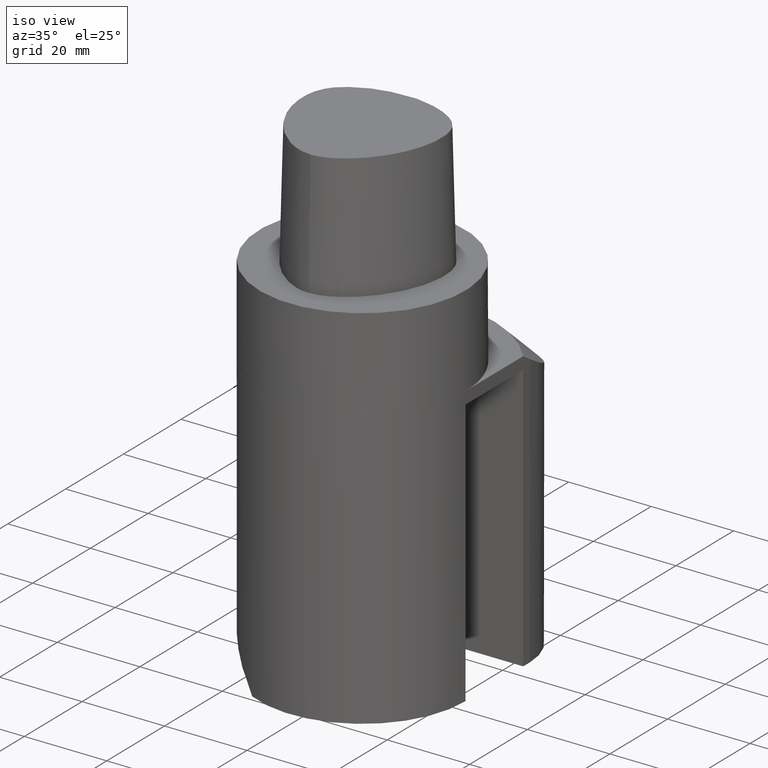
[diagram: clean part render]
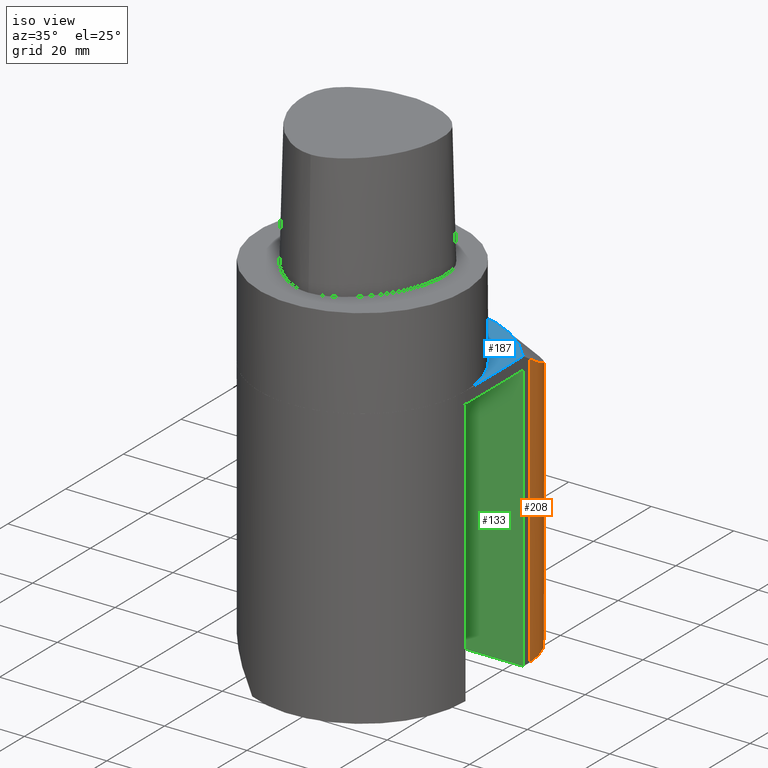
[diagram: same view with three faces highlighted in distinct colors, each labeled with its STEP entity id]
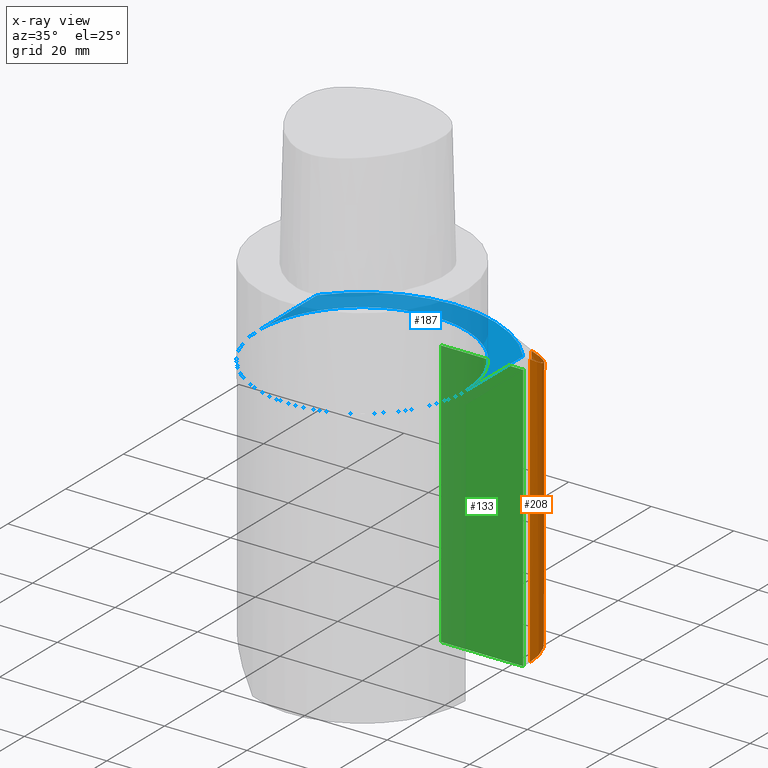
[diagram: x-ray of the same camera — body ghosted, the three highlighted faces saturated]
A machine part, iso view with three faces highlighted in distinct colors.
The next image is the same camera in x-ray (body ghosted, the three faces saturated) — at least one of them is partly hidden behind the body in this view.
Their STEP definitions:

[orange] entity #208 — the highlighted cylindrical surface (partial cylindrical patch) has radius 16 mm, axis along (-0, 0, 1).
#135=EDGE_CURVE('240[2]',#325,#286,#326,.T.);
#158=EDGE_CURVE('240[2]',#340,#286,#359,.T.);
#166=EDGE_CURVE('240[2]',#346,#340,#369,.T.);
#208=ADVANCED_FACE('240[2]',(#419),#420,.T.);
#234=EDGE_CURVE('240[2]',#325,#346,#452,.T.);
#286=VERTEX_POINT('',#510);
#325=VERTEX_POINT('',#563);
#326=LINE('',#564,#565);
#340=VERTEX_POINT('',#587);
#346=VERTEX_POINT('',#596);
#359=B_SPLINE_CURVE_WITH_KNOTS('',3,(#1092,#1093,#1094,#1095,#1096,#1097,#1098,#1099,#1100,#1101,#1102,#1103,#1104,#1105,#1106,#1107),.UNSPECIFIED.,.F.,.F.,(4,2,2,2,2,2,2,4),(23.5284476815155,26.1635051094531,28.7985625373922,31.4336199653313,34.0686773932704,37.3157318857098,40.5627863781492,42.9744815832491),.UNSPECIFIED.);
#369=LINE('',#1123,#1124);
#419=FACE_OUTER_BOUND('',#1218,.T.);
#420=CYLINDRICAL_SURFACE('',#1219,16.0);
#452=CIRCLE('',#1312,16.0);
#510=CARTESIAN_POINT('',(25.0,22.2485954612832,-23.466401061364));
#563=CARTESIAN_POINT('',(25.0,22.2485954612832,-90.0000000000002));
#564=CARTESIAN_POINT('',(25.0,22.2485954612832,-89.0000000000009));
#565=VECTOR('',#1402,65.5335989386369);
#587=CARTESIAN_POINT('',(14.9999999999999,37.0809924354746,-30.0000000000007));
#596=CARTESIAN_POINT('',(14.9999999999999,37.0809924354746,-90.0000000000008));
#1092=CARTESIAN_POINT('',(15.0000000000006,37.0809924354743,-30.0000000000007));
#1093=CARTESIAN_POINT('',(15.8142545379377,36.7516102569818,-30.0000000000007));
#1094=CARTESIAN_POINT('',(16.6279567442258,36.3430416121195,-29.9559141211588));
#1095=CARTESIAN_POINT('',(18.1867316651038,35.3803545858274,-29.7705437909274));
#1096=CARTESIAN_POINT('',(18.9318393418272,34.8262885874262,-29.6292812996166));
#1097=CARTESIAN_POINT('',(20.3029619384396,33.6100588488435,-29.2560993606877));
#1098=CARTESIAN_POINT('',(20.9301471830432,32.9469518283865,-29.0238542363534));
#1099=CARTESIAN_POINT('',(22.0372760891465,31.5659273198522,-28.4881515346753));
#1100=CARTESIAN_POINT('',(22.5172772851337,30.8480739294063,-28.1846476258228));
#1101=CARTESIAN_POINT('',(23.4166631892578,29.2610032388611,-27.4658488429808));
#1102=CARTESIAN_POINT('',(23.8359856580691,28.325385223544,-27.0095256242477));
#1103=CARTESIAN_POINT('',(24.4858780145183,26.3984661226904,-25.9952852785824));
#1104=CARTESIAN_POINT('',(24.7166021467317,25.4072474769729,-25.4373103704645));
#1105=CARTESIAN_POINT('',(24.9520041598144,23.6904653487833,-24.4018891330599));
#1106=CARTESIAN_POINT('',(24.9997182469205,22.9615605249888,-23.9402235092718));
#1107=CARTESIAN_POINT('',(24.9998756102743,22.2486281925418,-23.4663517764093));
#1123=CARTESIAN_POINT('',(15.0000000000003,37.0809924354793,-90.0000000000008));
#1124=VECTOR('',#1427,60.0000000000001);
#1218=EDGE_LOOP('',(#1489,#1490,#1491,#1492));
#1219=AXIS2_PLACEMENT_3D('',#1493,#1494,#1495);
#1312=AXIS2_PLACEMENT_3D('',#1543,#1544,#1545);
#1402=DIRECTION('',(0.0,0.0,1.0));
#1427=DIRECTION('',(0.0,0.0,1.0));
#1489=ORIENTED_EDGE('',*,*,#166,.T.);
#1490=ORIENTED_EDGE('',*,*,#158,.T.);
#1491=ORIENTED_EDGE('',*,*,#135,.F.);
#1492=ORIENTED_EDGE('',*,*,#234,.T.);
#1493=CARTESIAN_POINT('',(8.99999999999993,22.2485954612832,-263.139999954391));
#1494=DIRECTION('',(-0.0,0.0,1.0));
#1495=DIRECTION('',(1.0,0.0,0.0));
#1543=CARTESIAN_POINT('',(8.99999999999994,22.2485954612832,-90.0000000000002));
#1544=DIRECTION('',(0.0,0.0,1.0));
#1545=DIRECTION('',(1.0,0.0,0.0));

[blue] entity #187 — the highlighted planar face has unit normal (-0, -0, -1).
#103=EDGE_CURVE('240[2]',#276,#277,#278,.T.);
#143=EDGE_CURVE('240[2]',#287,#337,#338,.T.);
#153=EDGE_CURVE('240[2]',#287,#352,#353,.T.);
#171=EDGE_CURVE('240[2]',#301,#337,#375,.T.);
#175=EDGE_CURVE('240[2]',#277,#301,#379,.T.);
#187=ADVANCED_FACE('240[2]',(#392,#393),#394,.F.);
#189=EDGE_CURVE('240[2]',#352,#276,#396,.T.);
#215=EDGE_CURVE('240[2]',#428,#428,#429,.T.);
#276=VERTEX_POINT('',#492);
#277=VERTEX_POINT('',#493);
#278=CIRCLE('',#494,25.0000000000001);
#287=VERTEX_POINT('',#511);
#301=VERTEX_POINT('',#529);
#337=VERTEX_POINT('',#583);
#338=CIRCLE('',#584,31.9999999999976);
#352=VERTEX_POINT('',#699);
#353=LINE('',#700,#701);
#375=CIRCLE('',#1132,738.70740952226);
#379=LINE('',#1139,#1140);
#392=FACE_OUTER_BOUND('',#1174,.T.);
#393=FACE_BOUND('',#1175,.T.);
#394=PLANE('',#1176);
#396=CIRCLE('',#1179,25.0);
#428=VERTEX_POINT('',#1231);
#429=CIRCLE('',#1232,24.9899999999999);
#492=CARTESIAN_POINT('',(-18.5687480408742,-16.7392232852859,-22.000000000001));
#493=CARTESIAN_POINT('',(-25.0,-3.86535248253495E-012,-21.9999999999998));
#494=AXIS2_PLACEMENT_3D('',#1360,#1361,#1362);
#511=CARTESIAN_POINT('',(25.0,19.9749843554335,-22.0000000000005));
#529=CARTESIAN_POINT('',(-25.0000000138871,19.9294348912551,-21.9999999999998));
#583=CARTESIAN_POINT('',(-24.9974794614974,19.9781385662387,-21.9999999999997));
#584=AXIS2_PLACEMENT_3D('',#1406,#1407,#1408);
#699=CARTESIAN_POINT('',(25.0,-3.75166564481333E-012,-21.9999999999998));
#700=CARTESIAN_POINT('',(25.0,19.9749843554335,-21.9999999999998));
#701=VECTOR('',#1416,19.9749843554373);
#1132=AXIS2_PLACEMENT_3D('',#1436,#1437,#1438);
#1139=CARTESIAN_POINT('',(-25.0000000138871,-3.86535248253495E-012,-21.9999999999998));
#1140=VECTOR('',#1440,17.3309971985202);
#1174=EDGE_LOOP('',(#1455,#1456,#1457,#1458,#1459,#1460));
#1175=EDGE_LOOP('',(#1461));
#1176=AXIS2_PLACEMENT_3D('',#1462,#1463,#1464);
#1179=AXIS2_PLACEMENT_3D('',#1465,#1466,#1467);
#1231=CARTESIAN_POINT('',(-1.34711147906215E-015,24.9899999999992,-22.000000000001));
#1232=AXIS2_PLACEMENT_3D('',#1505,#1506,#1507);
#1360=CARTESIAN_POINT('',(1.12339726242554E-013,-3.86535248253495E-012,-22.000000000001));
#1361=DIRECTION('',(0.0,0.0,-1.0));
#1362=DIRECTION('',(1.0,0.0,0.0));
#1406=CARTESIAN_POINT('',(-1.34711147906208E-015,-7.38964445190504E-013,-21.9999999999998));
#1407=DIRECTION('',(0.0,-0.0,1.0));
#1408=DIRECTION('',(0.0,1.0,0.0));
#1416=DIRECTION('',(0.0,-1.0,0.0));
#1436=CARTESIAN_POINT('',(712.721392143028,-18.2253084200521,-22.0000000000008));
#1437=DIRECTION('',(0.0,0.0,-1.0));
#1438=DIRECTION('',(0.0566399755711694,0.998394668038295,0.0));
#1440=DIRECTION('',(0.0,1.0,0.0));
#1455=ORIENTED_EDGE('',*,*,#175,.F.);
#1456=ORIENTED_EDGE('',*,*,#103,.F.);
#1457=ORIENTED_EDGE('',*,*,#189,.F.);
#1458=ORIENTED_EDGE('',*,*,#153,.F.);
#1459=ORIENTED_EDGE('',*,*,#143,.T.);
#1460=ORIENTED_EDGE('',*,*,#171,.F.);
#1461=ORIENTED_EDGE('',*,*,#215,.F.);
#1462=CARTESIAN_POINT('',(-1.34711147906215E-015,28.494999999998,-22.000000000001));
#1463=DIRECTION('',(-0.0,-0.0,-1.0));
#1464=DIRECTION('',(0.0,-1.0,0.0));
#1465=CARTESIAN_POINT('',(-1.34711147906215E-015,-3.75166564481333E-012,-22.000000000001));
#1466=DIRECTION('',(0.0,0.0,-1.0));
#1467=DIRECTION('',(1.0,0.0,0.0));
#1505=CARTESIAN_POINT('',(-1.34711147906209E-015,-7.38964445190504E-013,-22.0000000000001));
#1506=DIRECTION('',(0.0,-0.0,1.0));
#1507=DIRECTION('',(0.0,1.0,0.0));

[green] entity #133 — the highlighted planar face has unit normal (0, -1, 0).
#128=EDGE_CURVE('240[2]',#315,#316,#317,.T.);
#133=ADVANCED_FACE('240[2]',(#322),#323,.T.);
#141=EDGE_CURVE('240[2]',#316,#334,#335,.T.);
#147=EDGE_CURVE('240[2]',#343,#334,#344,.T.);
#162=EDGE_CURVE('240[2]',#343,#315,#364,.T.);
#315=VERTEX_POINT('',#548);
#316=VERTEX_POINT('',#549);
#317=LINE('',#550,#551);
#322=FACE_OUTER_BOUND('',#559,.T.);
#323=PLANE('',#560);
#334=VERTEX_POINT('',#578);
#335=LINE('',#579,#580);
#343=VERTEX_POINT('',#591);
#344=LINE('',#592,#593);
#364=LINE('',#1114,#1115);
#548=CARTESIAN_POINT('',(25.0,19.9999999999962,-90.0000000000002));
#549=CARTESIAN_POINT('',(25.0,19.9999999999962,-25.0000000000009));
#550=CARTESIAN_POINT('',(25.0,19.9999999999962,-89.0000000000009));
#551=VECTOR('',#1392,64.0);
#559=EDGE_LOOP('',(#1395,#1396,#1397,#1398));
#560=AXIS2_PLACEMENT_3D('',#1399,#1400,#1401);
#578=CARTESIAN_POINT('',(5.0,19.9999999999962,-25.0000000000009));
#579=CARTESIAN_POINT('',(25.0,19.9999999999962,-25.0000000000009));
#580=VECTOR('',#1405,20.0);
#591=CARTESIAN_POINT('',(4.99999999999999,19.9999999999962,-90.0000000000002));
#592=CARTESIAN_POINT('',(4.99999999999998,19.9999999999962,-90.0000000000002));
#593=VECTOR('',#1412,64.9999999999993);
#1114=CARTESIAN_POINT('',(4.99999999999999,19.9999999999962,-90.0000000000002));
#1115=VECTOR('',#1425,19.0000000000001);
#1392=DIRECTION('',(0.0,0.0,1.0));
#1395=ORIENTED_EDGE('',*,*,#141,.T.);
#1396=ORIENTED_EDGE('',*,*,#147,.F.);
#1397=ORIENTED_EDGE('',*,*,#162,.T.);
#1398=ORIENTED_EDGE('',*,*,#128,.T.);
#1399=CARTESIAN_POINT('',(15.0,19.9999999999962,-263.139999954391));
#1400=DIRECTION('',(0.0,-1.0,0.0));
#1401=DIRECTION('',(0.0,0.0,-1.0));
#1405=DIRECTION('',(-1.0,0.0,0.0));
#1412=DIRECTION('',(0.0,0.0,1.0));
#1425=DIRECTION('',(1.0,0.0,0.0));